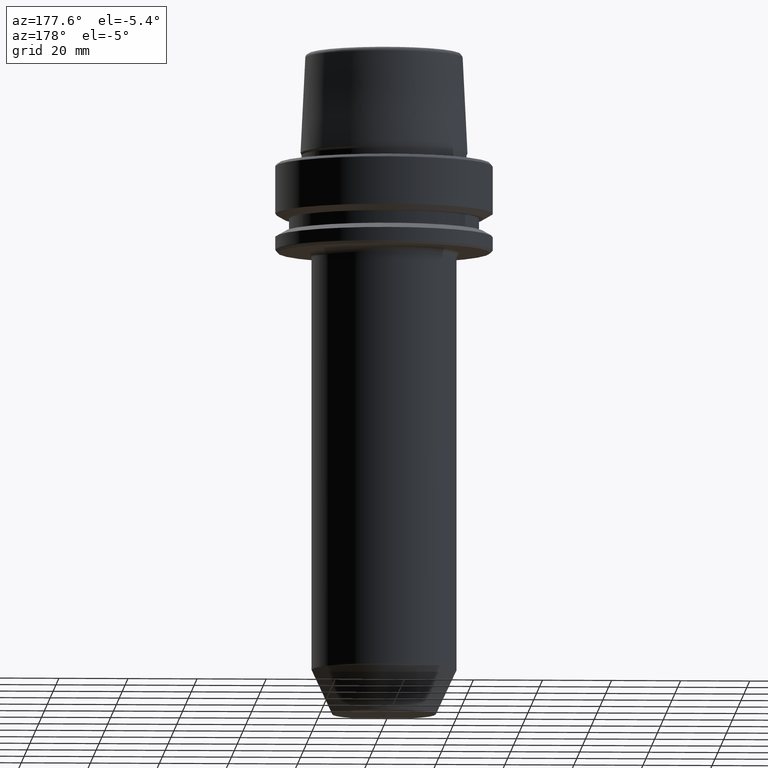
[diagram: clean part render]
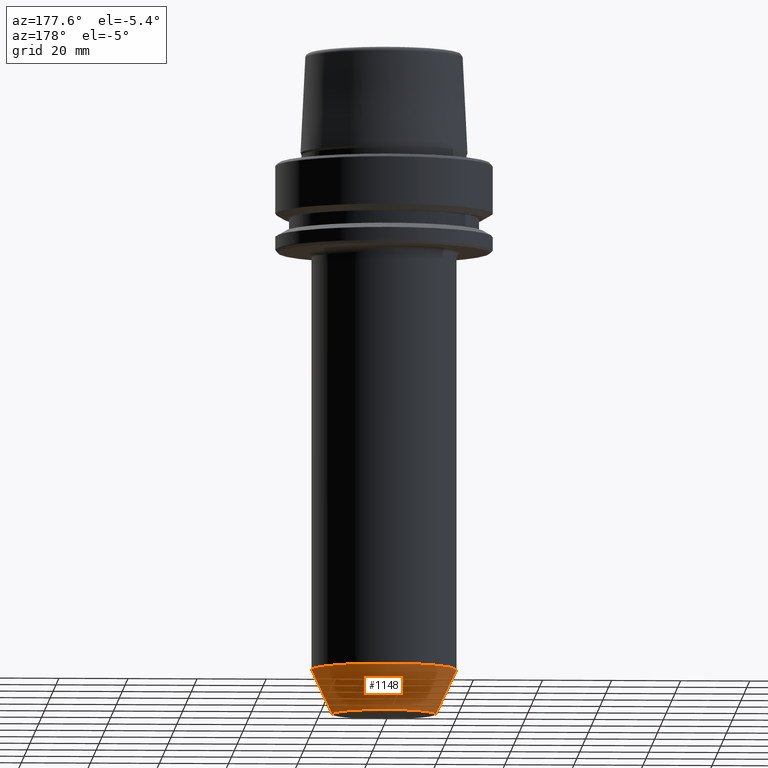
[diagram: same view with one face highlighted and labeled with its STEP entity id]
A machine part, auxiliary view. The second image highlights one B-rep face of the part: STEP entity #1148.
In plain terms, the highlighted conical surface has half-angle 25 deg.
Its self-contained STEP definition (entity closure, byte-faithful):
#9 = DIRECTION ( 'NONE',  ( -0.4226182617406975500, 5.175581015019636000E-017, 0.9063077870366509400 ) ) ;
#19 = CARTESIAN_POINT ( 'NONE',  ( 21.00000000000000000, 0.0000000000000000000, -147.1329584769425800 ) ) ;
#25 = AXIS2_PLACEMENT_3D ( 'NONE', #887, #899, #585 ) ;
#119 = DIRECTION ( 'NONE',  ( 1.000000000000000000, 0.0000000000000000000, 0.0000000000000000000 ) ) ;
#224 = VECTOR ( 'NONE', #620, 1000.000000000000100 ) ;
#254 = ORIENTED_EDGE ( 'NONE', *, *, #786, .F. ) ;
#256 = CIRCLE ( 'NONE', #1147, 15.00000000000000000 ) ;
#258 = AXIS2_PLACEMENT_3D ( 'NONE', #793, #1084, #119 ) ;
#280 = VECTOR ( 'NONE', #9, 1000.000000000000100 ) ;
#315 = LINE ( 'NONE', #402, #280 ) ;
#342 = ORIENTED_EDGE ( 'NONE', *, *, #462, .T. ) ;
#402 = CARTESIAN_POINT ( 'NONE',  ( -15.00000000000000000, 1.836970198721029600E-015, -160.0000000000000000 ) ) ;
#462 = EDGE_CURVE ( 'NONE', #720, #606, #315, .T. ) ;
#496 = CARTESIAN_POINT ( 'NONE',  ( 15.00000000000000000, 0.0000000000000000000, -160.0000000000000000 ) ) ;
#509 = CARTESIAN_POINT ( 'NONE',  ( 15.00000000000000000, 0.0000000000000000000, -160.0000000000000000 ) ) ;
#574 = LINE ( 'NONE', #509, #224 ) ;
#585 = DIRECTION ( 'NONE',  ( 1.000000000000000000, 0.0000000000000000000, 0.0000000000000000000 ) ) ;
#606 = VERTEX_POINT ( 'NONE', #1142 ) ;
#620 = DIRECTION ( 'NONE',  ( 0.4226182617406975500, 0.0000000000000000000, 0.9063077870366509400 ) ) ;
#655 = EDGE_CURVE ( 'NONE', #1174, #831, #574, .T. ) ;
#716 = CONICAL_SURFACE ( 'NONE', #25, 15.00000000000000000, 0.4363323129985802700 ) ;
#720 = VERTEX_POINT ( 'NONE', #822 ) ;
#786 = EDGE_CURVE ( 'NONE', #831, #606, #1130, .T. ) ;
#793 = CARTESIAN_POINT ( 'NONE',  ( 0.0000000000000000000, 0.0000000000000000000, -147.1329584769425800 ) ) ;
#822 = CARTESIAN_POINT ( 'NONE',  ( -15.00000000000000000, 2.204364238465235400E-015, -160.0000000000000000 ) ) ;
#831 = VERTEX_POINT ( 'NONE', #19 ) ;
#852 = FACE_OUTER_BOUND ( 'NONE', #1184, .T. ) ;
#887 = CARTESIAN_POINT ( 'NONE',  ( 0.0000000000000000000, 0.0000000000000000000, -160.0000000000000000 ) ) ;
#899 = DIRECTION ( 'NONE',  ( -0.0000000000000000000, -0.0000000000000000000, 1.000000000000000000 ) ) ;
#952 = CARTESIAN_POINT ( 'NONE',  ( 0.0000000000000000000, 0.0000000000000000000, -160.0000000000000000 ) ) ;
#960 = DIRECTION ( 'NONE',  ( -0.0000000000000000000, -0.0000000000000000000, 1.000000000000000000 ) ) ;
#1004 = ORIENTED_EDGE ( 'NONE', *, *, #1167, .T. ) ;
#1066 = DIRECTION ( 'NONE',  ( 1.000000000000000000, 0.0000000000000000000, 0.0000000000000000000 ) ) ;
#1084 = DIRECTION ( 'NONE',  ( -0.0000000000000000000, -0.0000000000000000000, 1.000000000000000000 ) ) ;
#1088 = ORIENTED_EDGE ( 'NONE', *, *, #655, .F. ) ;
#1130 = CIRCLE ( 'NONE', #258, 21.00000000000000000 ) ;
#1142 = CARTESIAN_POINT ( 'NONE',  ( -21.00000000000000000, 2.571758278209441700E-015, -147.1329584769425800 ) ) ;
#1147 = AXIS2_PLACEMENT_3D ( 'NONE', #952, #960, #1066 ) ;
#1148 = ADVANCED_FACE ( 'NONE', ( #852 ), #716, .T. ) ;
#1167 = EDGE_CURVE ( 'NONE', #1174, #720, #256, .T. ) ;
#1174 = VERTEX_POINT ( 'NONE', #496 ) ;
#1184 = EDGE_LOOP ( 'NONE', ( #1004, #342, #254, #1088 ) ) ;